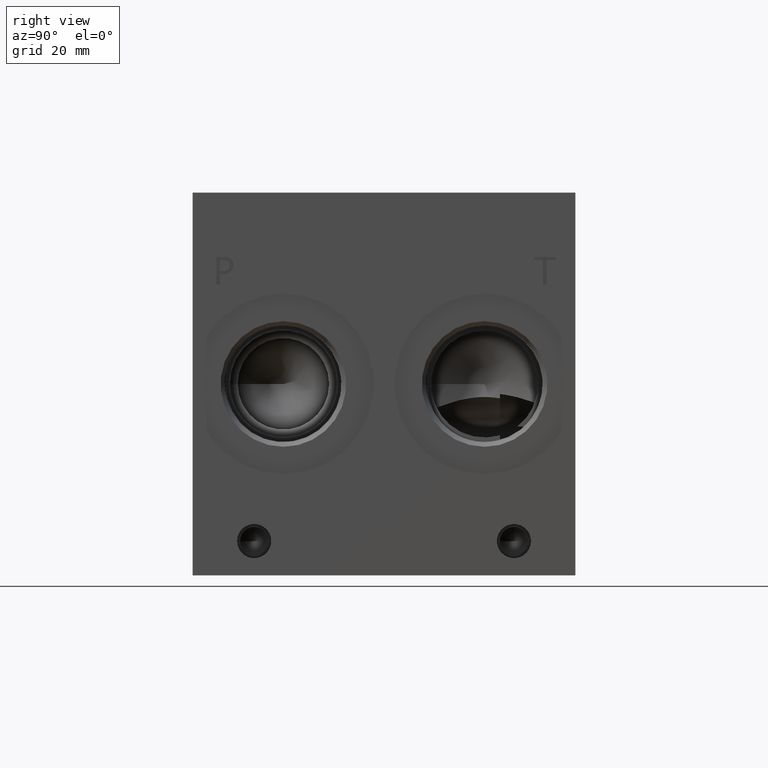
[diagram: clean part render]
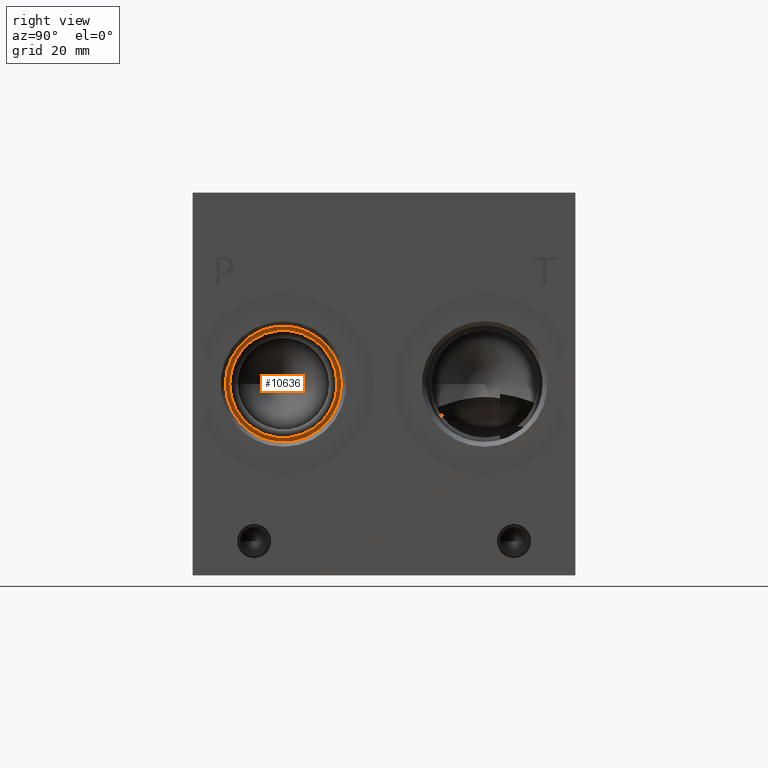
[diagram: same view with one face highlighted and labeled with its STEP entity id]
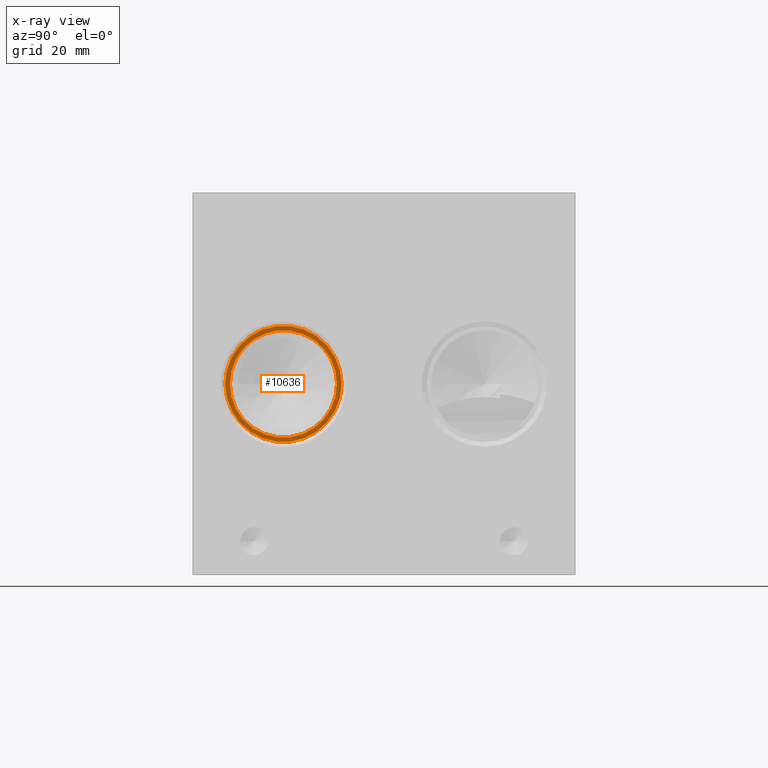
[diagram: x-ray of the same camera — body ghosted, the highlighted face saturated]
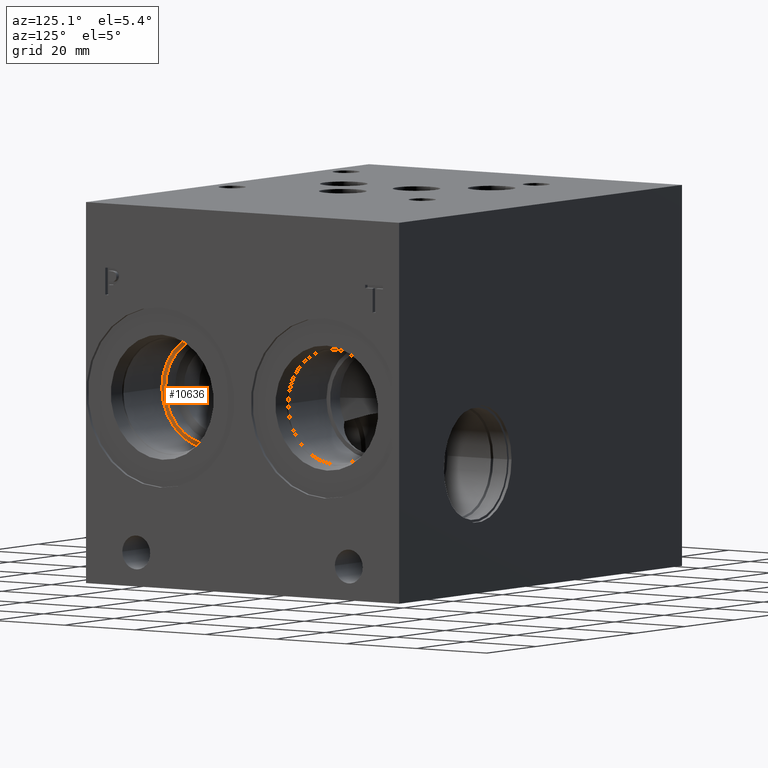
[diagram: same view with one face highlighted and labeled with its STEP entity id]
A machine part, right view. The second image highlights one B-rep face of the part: STEP entity #10636.
The next image is the same camera in x-ray: the body ghosted, the highlighted face saturated — about 0% of this face is hidden behind the body in this view.
A second angle (auxiliary view) of the same face is appended — the face is thin or edge-on in the first view.
In plain terms, the highlighted planar face has unit normal (1, 0, 0).
Its self-contained STEP definition (entity closure, byte-faithful):
#160=CIRCLE('',#11108,13.5001);
#161=CIRCLE('',#11109,13.5001);
#162=CIRCLE('',#11110,12.4587);
#370=FACE_BOUND('',#1755,.T.);
#684=PLANE('',#11107);
#1155=FACE_OUTER_BOUND('',#1754,.T.);
#1754=EDGE_LOOP('',(#9097,#9098));
#1755=EDGE_LOOP('',(#9099));
#4993=VERTEX_POINT('',#18057);
#4994=VERTEX_POINT('',#18058);
#4995=VERTEX_POINT('',#18061);
#6416=EDGE_CURVE('',#4993,#4994,#160,.T.);
#6417=EDGE_CURVE('',#4994,#4993,#161,.T.);
#6418=EDGE_CURVE('',#4995,#4995,#162,.T.);
#9097=ORIENTED_EDGE('',*,*,#6416,.T.);
#9098=ORIENTED_EDGE('',*,*,#6417,.T.);
#9099=ORIENTED_EDGE('',*,*,#6418,.F.);
#10636=ADVANCED_FACE('',(#1155,#370),#684,.T.);
#11107=AXIS2_PLACEMENT_3D('',#18056,#12987,#12988);
#11108=AXIS2_PLACEMENT_3D('',#18059,#12989,#12990);
#11109=AXIS2_PLACEMENT_3D('',#18060,#12991,#12992);
#11110=AXIS2_PLACEMENT_3D('',#18062,#12993,#12994);
#12987=DIRECTION('center_axis',(1.,0.,0.));
#12988=DIRECTION('ref_axis',(0.,1.,0.));
#12989=DIRECTION('center_axis',(1.,0.,0.));
#12990=DIRECTION('ref_axis',(0.,1.,0.));
#12991=DIRECTION('center_axis',(1.,0.,0.));
#12992=DIRECTION('ref_axis',(0.,1.,0.));
#12993=DIRECTION('center_axis',(1.,0.,0.));
#12994=DIRECTION('ref_axis',(0.,1.,0.));
#18056=CARTESIAN_POINT('Origin',(94.4626,21.082,44.45));
#18057=CARTESIAN_POINT('',(94.4626,34.5821,44.45));
#18058=CARTESIAN_POINT('',(94.4626,7.5819,44.45));
#18059=CARTESIAN_POINT('Origin',(94.4626,21.082,44.45));
#18060=CARTESIAN_POINT('Origin',(94.4626,21.082,44.45));
#18061=CARTESIAN_POINT('',(94.4626,8.6233,44.45));
#18062=CARTESIAN_POINT('Origin',(94.4626,21.082,44.45));